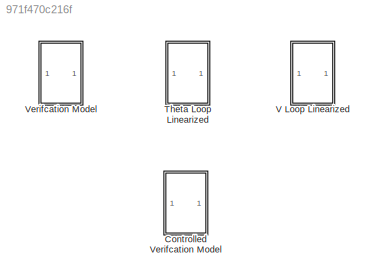
MODEL slx_971f470c216f
KIND model
CONFIG AbsTol = auto
CONFIG EnableMultiTasking = off
CONFIG FixedStep = auto
CONFIG MaxStep = auto
CONFIG MinStep = auto
CONFIG RelTol = 1e-3
CONFIG SampleTimeConstraint = Unconstrained
CONFIG Solver = VariableStepAuto
CONFIG SolverName = VariableStepAuto
CONFIG StartTime = 0.0
CONFIG StopTime = 250
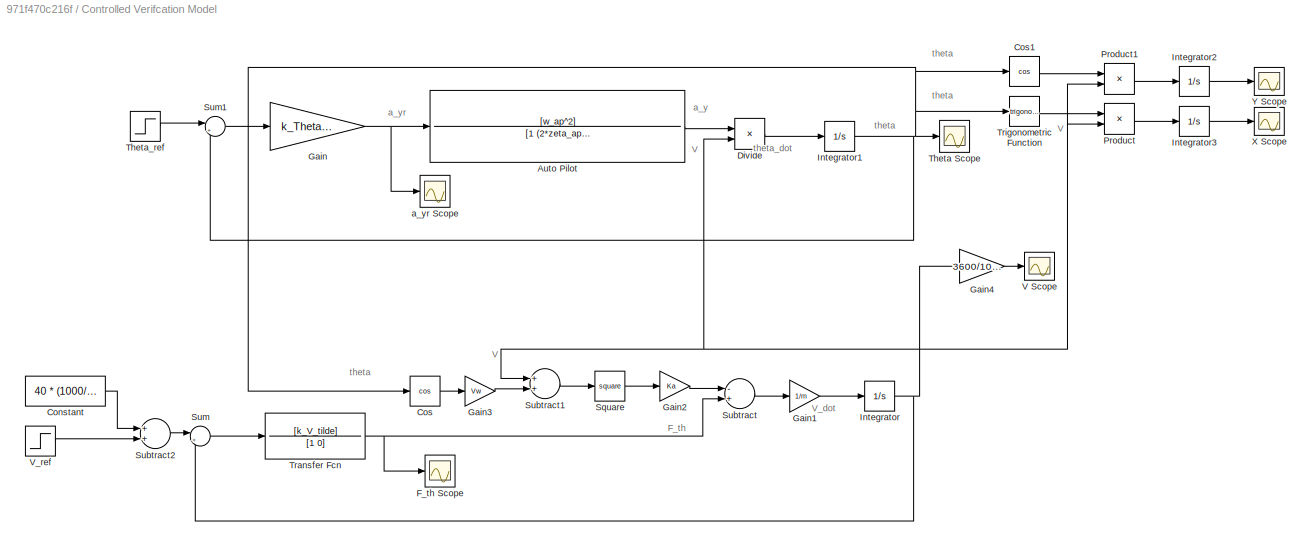
BLOCK [SubSystem] Controlled Verifcation Model 
  Ports = []
  RequestExecContextInheritance = off
BLOCK [TransferFcn] Controlled Verifcation Model /Auto Pilot
  ContinuousStateAttributes = 'auto_pilot'
  Denominator = [1 (2*zeta_ap*w_ap)  w_ap^2]
  Numerator = [w_ap^2]
BLOCK [Constant] Controlled Verifcation Model /Constant
  Value = 40 * (1000/3600)
BLOCK [Trigonometry] Controlled Verifcation Model /Cos
  Operator = cos
  Ports = [1, 1]
BLOCK [Trigonometry] Controlled Verifcation Model /Cos1
  Operator = cos
  Ports = [1, 1]
BLOCK [Product] Controlled Verifcation Model /Divide
  InputSameDT = off
  Inputs = */
  OutDataTypeStr = Inherit: Inherit via internal rule
  Ports = [2, 1]
  RndMeth = Floor
  SaturateOnIntegerOverflow = off
BLOCK [Scope] Controlled Verifcation Model /F_th Scope
  Floating = off
  NumInputPorts = 1
  Ports = [1]
  ScopeSpecificationString = Simulink.scopes.TimeScopeBlockCfg('CurrentConfiguration', extmgr.ConfigurationSet(extmgr.Configuration('Core','General UI',true),extmgr.Configuration('Core','Source UI',true),extmgr.Configuration('Sources','WiredSimulink',true,'DataLogging',true,'DataLoggingVariableName','F_th_controlled','DataLoggingSaveFormat','Array'),extmgr.Configuration('Visuals','Time Domain',true,'SerializedDisplays',{struc...<+1445ch>
BLOCK [Gain] Controlled Verifcation Model /Gain
  Gain = k_Theta*V_nom
  OutDataTypeStr = Inherit: Inherit via internal rule
  ParamDataTypeStr = Inherit: Inherit via internal rule
  SaturateOnIntegerOverflow = off
BLOCK [Gain] Controlled Verifcation Model /Gain1
  Gain = 1/m
  OutDataTypeStr = Inherit: Inherit via internal rule
  ParamDataTypeStr = Inherit: Inherit via internal rule
  SaturateOnIntegerOverflow = off
BLOCK [Gain] Controlled Verifcation Model /Gain2
  Gain = Ka
  OutDataTypeStr = Inherit: Inherit via internal rule
  ParamDataTypeStr = Inherit: Inherit via internal rule
  SaturateOnIntegerOverflow = off
BLOCK [Gain] Controlled Verifcation Model /Gain3
  Gain = Vw
  OutDataTypeStr = Inherit: Inherit via internal rule
  ParamDataTypeStr = Inherit: Inherit via internal rule
  SaturateOnIntegerOverflow = off
BLOCK [Gain] Controlled Verifcation Model /Gain4
  Gain = 3600/1000
  OutDataTypeStr = Inherit: Inherit via internal rule
  ParamDataTypeStr = Inherit: Inherit via internal rule
  SaturateOnIntegerOverflow = off
BLOCK [Integrator] Controlled Verifcation Model /Integrator
  InitialCondition = V0
  Ports = [1, 1]
BLOCK [Integrator] Controlled Verifcation Model /Integrator1
  Ports = [1, 1]
BLOCK [Integrator] Controlled Verifcation Model /Integrator2
  Ports = [1, 1]
BLOCK [Integrator] Controlled Verifcation Model /Integrator3
  Ports = [1, 1]
BLOCK [Product] Controlled Verifcation Model /Product
  InputSameDT = off
  OutDataTypeStr = Inherit: Inherit via internal rule
  Ports = [2, 1]
  RndMeth = Floor
  SaturateOnIntegerOverflow = off
BLOCK [Product] Controlled Verifcation Model /Product1
  InputSameDT = off
  OutDataTypeStr = Inherit: Inherit via internal rule
  Ports = [2, 1]
  RndMeth = Floor
  SaturateOnIntegerOverflow = off
BLOCK [Math] Controlled Verifcation Model /Square
  Operator = square
  Ports = [1, 1]
  SignedPower = off
BLOCK [Sum] Controlled Verifcation Model /Subtract
  InputSameDT = off
  Inputs = -+
  OutDataTypeStr = Inherit: Inherit via internal rule
  Ports = [2, 1]
  SaturateOnIntegerOverflow = off
BLOCK [Sum] Controlled Verifcation Model /Subtract1
  InputSameDT = off
  OutDataTypeStr = Inherit: Inherit via internal rule
  Ports = [2, 1]
  SaturateOnIntegerOverflow = off
BLOCK [Sum] Controlled Verifcation Model /Subtract2
  InputSameDT = off
  OutDataTypeStr = Inherit: Inherit via internal rule
  Ports = [2, 1]
  SaturateOnIntegerOverflow = off
BLOCK [Sum] Controlled Verifcation Model /Sum
  IconShape = round
  InputSameDT = off
  Inputs = |+-
  OutDataTypeStr = Inherit: Inherit via internal rule
  Ports = [2, 1]
  SaturateOnIntegerOverflow = off
BLOCK [Sum] Controlled Verifcation Model /Sum1
  IconShape = round
  InputSameDT = off
  Inputs = |+-
  OutDataTypeStr = Inherit: Inherit via internal rule
  Ports = [2, 1]
  SaturateOnIntegerOverflow = off
BLOCK [Scope] Controlled Verifcation Model /Theta Scope
  Floating = off
  NumInputPorts = 1
  Ports = [1]
  ScopeSpecificationString = Simulink.scopes.TimeScopeBlockCfg('CurrentConfiguration', extmgr.ConfigurationSet(extmgr.Configuration('Core','General UI',true),extmgr.Configuration('Core','Source UI',true),extmgr.Configuration('Sources','WiredSimulink',true,'DataLogging',true,'DataLoggingVariableName','Theta_controlled','DataLoggingSaveFormat','Array'),extmgr.Configuration('Visuals','Time Domain',true,'SerializedDisplays',{stru...<+1427ch>
BLOCK [Step] Controlled Verifcation Model /Theta_ref
  After = deg2rad(180)
  SampleTime = 0
  Time = 50
BLOCK [TransferFcn] Controlled Verifcation Model /Transfer Fcn
  Denominator = [1 0]
  Numerator = [k_V_tilde]
BLOCK [Trigonometry] Controlled Verifcation Model /Trigonometric Function
  Ports = [1, 1]
BLOCK [Scope] Controlled Verifcation Model /V Scope
  Floating = off
  NumInputPorts = 1
  Ports = [1]
  ScopeSpecificationString = Simulink.scopes.TimeScopeBlockCfg('CurrentConfiguration', extmgr.ConfigurationSet(extmgr.Configuration('Core','General UI',true),extmgr.Configuration('Core','Source UI',true),extmgr.Configuration('Sources','WiredSimulink',true,'DataLoggingVariableName','V_controlled','DataLogging',true,'DataLoggingSaveFormat','Array'),extmgr.Configuration('Visuals','Time Domain',true,'SerializedDisplays',{struct('...<+1423ch>
BLOCK [Step] Controlled Verifcation Model /V_ref
  After = 10 * (1000/3600)
  SampleTime = 0
  Time = 0
BLOCK [Scope] Controlled Verifcation Model /X Scope
  Floating = off
  NumInputPorts = 1
  Ports = [1]
  ScopeSpecificationString = Simulink.scopes.TimeScopeBlockCfg('CurrentConfiguration', extmgr.ConfigurationSet(extmgr.Configuration('Core','General UI',true),extmgr.Configuration('Core','Source UI',true),extmgr.Configuration('Sources','WiredSimulink',true,'DataLoggingVariableName','X_controlled','DataLogging',true,'DataLoggingSaveFormat','Array'),extmgr.Configuration('Visuals','Time Domain',true,'SerializedDisplays',{struct('...<+1437ch>
BLOCK [Scope] Controlled Verifcation Model /Y Scope 
  Floating = off
  NumInputPorts = 1
  Ports = [1]
  ScopeSpecificationString = Simulink.scopes.TimeScopeBlockCfg('CurrentConfiguration', extmgr.ConfigurationSet(extmgr.Configuration('Core','General UI',true),extmgr.Configuration('Core','Source UI',true),extmgr.Configuration('Sources','WiredSimulink',true,'DataLoggingVariableName','Y_controlled','DataLogging',true,'DataLoggingSaveFormat','Array'),extmgr.Configuration('Visuals','Time Domain',true,'SerializedDisplays',{struct('...<+1445ch>
BLOCK [Scope] Controlled Verifcation Model /a_yr Scope
  Floating = off
  NumInputPorts = 1
  Ports = [1]
  ScopeSpecificationString = Simulink.scopes.TimeScopeBlockCfg('CurrentConfiguration', extmgr.ConfigurationSet(extmgr.Configuration('Core','General UI',true),extmgr.Configuration('Core','Source UI',true),extmgr.Configuration('Sources','WiredSimulink',true,'DataLogging',true,'DataLoggingVariableName','a_yr_controlled','DataLoggingSaveFormat','Array'),extmgr.Configuration('Visuals','Time Domain',true,'SerializedDisplays',{struc...<+1415ch>
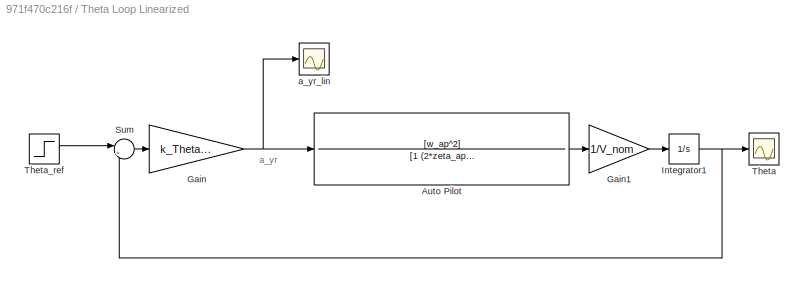
BLOCK [SubSystem] Theta Loop Linearized
  Commented = on
  Ports = []
  RequestExecContextInheritance = off
BLOCK [TransferFcn] Theta Loop Linearized/Auto Pilot
  ContinuousStateAttributes = 'auto_pilot'
  Denominator = [1 (2*zeta_ap*w_ap)  w_ap^2]
  Numerator = [w_ap^2]
BLOCK [Gain] Theta Loop Linearized/Gain
  Gain = k_Theta*V_nom
  OutDataTypeStr = Inherit: Inherit via internal rule
  ParamDataTypeStr = Inherit: Inherit via internal rule
  SaturateOnIntegerOverflow = off
BLOCK [Gain] Theta Loop Linearized/Gain1
  Gain = 1/V_nom
  OutDataTypeStr = Inherit: Inherit via internal rule
  ParamDataTypeStr = Inherit: Inherit via internal rule
  SaturateOnIntegerOverflow = off
BLOCK [Integrator] Theta Loop Linearized/Integrator1
  Ports = [1, 1]
BLOCK [Sum] Theta Loop Linearized/Sum
  IconShape = round
  InputSameDT = off
  Inputs = |+-
  OutDataTypeStr = Inherit: Inherit via internal rule
  Ports = [2, 1]
  SaturateOnIntegerOverflow = off
BLOCK [Scope] Theta Loop Linearized/Theta
  Floating = off
  NumInputPorts = 1
  Ports = [1]
  ScopeSpecificationString = Simulink.scopes.TimeScopeBlockCfg('CurrentConfiguration', extmgr.ConfigurationSet(extmgr.Configuration('Core','General UI',true),extmgr.Configuration('Core','Source UI',true),extmgr.Configuration('Sources','WiredSimulink',true,'DataLoggingVariableName','Theta_lin','DataLogging',true,'DataLoggingSaveFormat','Array'),extmgr.Configuration('Visuals','Time Domain',true,'SerializedDisplays',{struct('Min...<+1420ch>
BLOCK [Step] Theta Loop Linearized/Theta_ref
  After = deg2rad(180)
  SampleTime = 0
  Time = 50
BLOCK [Scope] Theta Loop Linearized/a_yr_lin
  Floating = off
  NumInputPorts = 1
  Ports = [1]
  ScopeSpecificationString = Simulink.scopes.TimeScopeBlockCfg('CurrentConfiguration', extmgr.ConfigurationSet(extmgr.Configuration('Core','General UI',true),extmgr.Configuration('Core','Source UI',true),extmgr.Configuration('Sources','WiredSimulink',true,'DataLoggingVariableName','a_yr_lin','DataLogging',true,'DataLoggingSaveFormat','Array'),extmgr.Configuration('Visuals','Time Domain',true,'SerializedDisplays',{struct('MinY...<+1408ch>
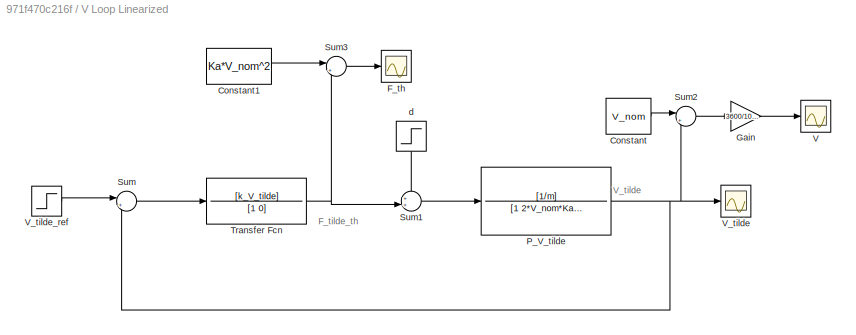
BLOCK [SubSystem] V Loop Linearized
  Commented = on
  Ports = []
  RequestExecContextInheritance = off
BLOCK [Constant] V Loop Linearized/Constant
  Value = V_nom
BLOCK [Constant] V Loop Linearized/Constant1
  Value = Ka*V_nom^2
BLOCK [Scope] V Loop Linearized/F_th
  Floating = off
  NumInputPorts = 1
  Ports = [1]
  ScopeSpecificationString = Simulink.scopes.TimeScopeBlockCfg('CurrentConfiguration', extmgr.ConfigurationSet(extmgr.Configuration('Core','General UI',true),extmgr.Configuration('Core','Source UI',true),extmgr.Configuration('Sources','WiredSimulink',true,'DataLoggingVariableName','F_th_lin','DataLogging',true,'DataLoggingSaveFormat','Array'),extmgr.Configuration('Visuals','Time Domain',true,'SerializedDisplays',{struct('MinY...<+1422ch>
BLOCK [Gain] V Loop Linearized/Gain
  Gain = 3600/1000
  OutDataTypeStr = Inherit: Inherit via internal rule
  ParamDataTypeStr = Inherit: Inherit via internal rule
  SaturateOnIntegerOverflow = off
BLOCK [TransferFcn] V Loop Linearized/P_V_tilde
  ContinuousStateAttributes = 'auto_pilot'
  Denominator = [1 2*V_nom*Ka/m]
  Numerator = [1/m]
BLOCK [Sum] V Loop Linearized/Sum
  IconShape = round
  InputSameDT = off
  Inputs = |+-
  OutDataTypeStr = Inherit: Inherit via internal rule
  Ports = [2, 1]
  SaturateOnIntegerOverflow = off
BLOCK [Sum] V Loop Linearized/Sum1
  IconShape = round
  InputSameDT = off
  Inputs = ++|
  OutDataTypeStr = Inherit: Inherit via internal rule
  Ports = [2, 1]
  SaturateOnIntegerOverflow = off
BLOCK [Sum] V Loop Linearized/Sum2
  IconShape = round
  InputSameDT = off
  Inputs = |++
  OutDataTypeStr = Inherit: Inherit via internal rule
  Ports = [2, 1]
  SaturateOnIntegerOverflow = off
BLOCK [Sum] V Loop Linearized/Sum3
  IconShape = round
  InputSameDT = off
  Inputs = |++
  OutDataTypeStr = Inherit: Inherit via internal rule
  Ports = [2, 1]
  SaturateOnIntegerOverflow = off
BLOCK [TransferFcn] V Loop Linearized/Transfer Fcn
  Denominator = [1 0]
  Numerator = [k_V_tilde]
BLOCK [Scope] V Loop Linearized/V
  Floating = off
  NumInputPorts = 1
  Ports = [1]
  ScopeSpecificationString = Simulink.scopes.TimeScopeBlockCfg('CurrentConfiguration', extmgr.ConfigurationSet(extmgr.Configuration('Core','General UI',true),extmgr.Configuration('Core','Source UI',true),extmgr.Configuration('Sources','WiredSimulink',true,'DataLoggingVariableName','V_lin','DataLogging',true,'DataLoggingSaveFormat','Array'),extmgr.Configuration('Visuals','Time Domain',true,'SerializedDisplays',{struct('MinYLim...<+1415ch>
BLOCK [Scope] V Loop Linearized/V_tilde
  Floating = off
  NumInputPorts = 1
  Ports = [1]
  ScopeSpecificationString = Simulink.scopes.TimeScopeBlockCfg('CurrentConfiguration', extmgr.ConfigurationSet(extmgr.Configuration('Core','General UI',true),extmgr.Configuration('Core','Source UI',true),extmgr.Configuration('Sources','WiredSimulink',true,'DataLoggingVariableName','V_tilde_lin','DataLogging',true,'DataLoggingSaveFormat','Array'),extmgr.Configuration('Visuals','Time Domain',true,'SerializedDisplays',{struct('M...<+1418ch>
BLOCK [Step] V Loop Linearized/V_tilde_ref
  After = 10 * (1000/3600)
  SampleTime = 0
  Time = 0
BLOCK [Step] V Loop Linearized/d
  After = -1
  SampleTime = 0
  Time = 50
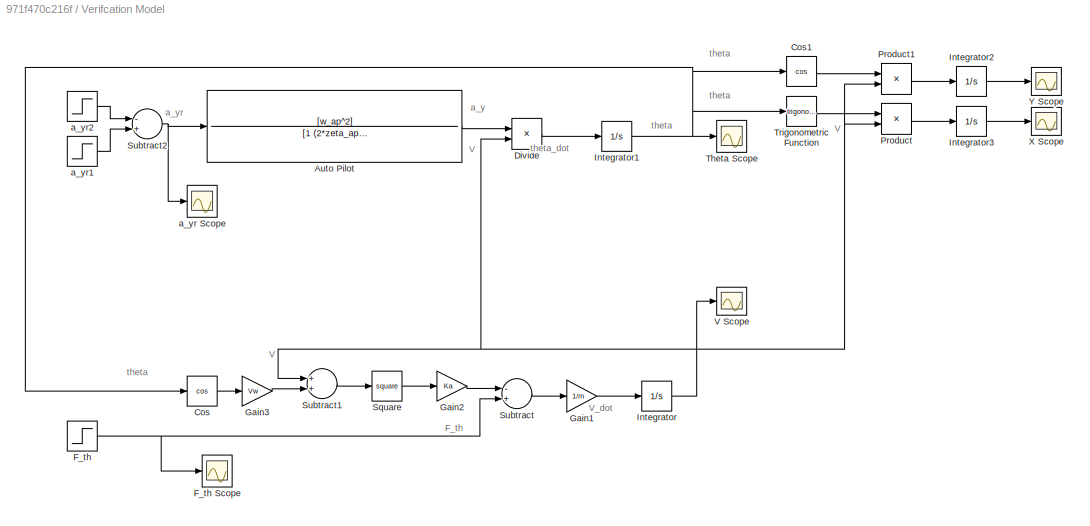
BLOCK [SubSystem] Verifcation Model 
  Commented = on
  Ports = []
  RequestExecContextInheritance = off
BLOCK [TransferFcn] Verifcation Model /Auto Pilot
  ContinuousStateAttributes = 'auto_pilot'
  Denominator = [1 (2*zeta_ap*w_ap)  w_ap^2]
  Numerator = [w_ap^2]
BLOCK [Trigonometry] Verifcation Model /Cos
  Operator = cos
  Ports = [1, 1]
BLOCK [Trigonometry] Verifcation Model /Cos1
  Operator = cos
  Ports = [1, 1]
BLOCK [Product] Verifcation Model /Divide
  InputSameDT = off
  Inputs = */
  OutDataTypeStr = Inherit: Inherit via internal rule
  Ports = [2, 1]
  RndMeth = Floor
  SaturateOnIntegerOverflow = off
BLOCK [Step] Verifcation Model /F_th
  After = 1500
  SampleTime = 0
  Time = 0
BLOCK [Scope] Verifcation Model /F_th Scope
  Floating = off
  NumInputPorts = 1
  Ports = [1]
  ScopeSpecificationString = Simulink.scopes.TimeScopeBlockCfg('CurrentConfiguration', extmgr.ConfigurationSet(extmgr.Configuration('Core','General UI',true),extmgr.Configuration('Core','Source UI',true),extmgr.Configuration('Sources','WiredSimulink',true,'DataLogging',true,'DataLoggingVariableName','F_th','DataLoggingSaveFormat','Array'),extmgr.Configuration('Visuals','Time Domain',true,'SerializedDisplays',{struct('MinYLimR...<+1426ch>
BLOCK [Gain] Verifcation Model /Gain1
  Gain = 1/m
  OutDataTypeStr = Inherit: Inherit via internal rule
  ParamDataTypeStr = Inherit: Inherit via internal rule
  SaturateOnIntegerOverflow = off
BLOCK [Gain] Verifcation Model /Gain2
  Gain = Ka
  OutDataTypeStr = Inherit: Inherit via internal rule
  ParamDataTypeStr = Inherit: Inherit via internal rule
  SaturateOnIntegerOverflow = off
BLOCK [Gain] Verifcation Model /Gain3
  Gain = Vw
  OutDataTypeStr = Inherit: Inherit via internal rule
  ParamDataTypeStr = Inherit: Inherit via internal rule
  SaturateOnIntegerOverflow = off
BLOCK [Integrator] Verifcation Model /Integrator
  InitialCondition = V0
  Ports = [1, 1]
BLOCK [Integrator] Verifcation Model /Integrator1
  Ports = [1, 1]
BLOCK [Integrator] Verifcation Model /Integrator2
  Ports = [1, 1]
BLOCK [Integrator] Verifcation Model /Integrator3
  Ports = [1, 1]
BLOCK [Product] Verifcation Model /Product
  InputSameDT = off
  OutDataTypeStr = Inherit: Inherit via internal rule
  Ports = [2, 1]
  RndMeth = Floor
  SaturateOnIntegerOverflow = off
BLOCK [Product] Verifcation Model /Product1
  InputSameDT = off
  OutDataTypeStr = Inherit: Inherit via internal rule
  Ports = [2, 1]
  RndMeth = Floor
  SaturateOnIntegerOverflow = off
BLOCK [Math] Verifcation Model /Square
  Operator = square
  Ports = [1, 1]
  SignedPower = off
BLOCK [Sum] Verifcation Model /Subtract
  InputSameDT = off
  Inputs = -+
  OutDataTypeStr = Inherit: Inherit via internal rule
  Ports = [2, 1]
  SaturateOnIntegerOverflow = off
BLOCK [Sum] Verifcation Model /Subtract1
  InputSameDT = off
  OutDataTypeStr = Inherit: Inherit via internal rule
  Ports = [2, 1]
  SaturateOnIntegerOverflow = off
BLOCK [Sum] Verifcation Model /Subtract2
  InputSameDT = off
  Inputs = -+
  OutDataTypeStr = Inherit: Inherit via internal rule
  Ports = [2, 1]
  SaturateOnIntegerOverflow = off
BLOCK [Scope] Verifcation Model /Theta Scope
  Floating = off
  NumInputPorts = 1
  Ports = [1]
  ScopeSpecificationString = Simulink.scopes.TimeScopeBlockCfg('CurrentConfiguration', extmgr.ConfigurationSet(extmgr.Configuration('Core','General UI',true),extmgr.Configuration('Core','Source UI',true),extmgr.Configuration('Sources','WiredSimulink',true,'DataLogging',true,'DataLoggingVariableName','Theta','DataLoggingSaveFormat','Array'),extmgr.Configuration('Visuals','Time Domain',true,'SerializedDisplays',{struct('MinYLim...<+1416ch>
BLOCK [Trigonometry] Verifcation Model /Trigonometric Function
  Ports = [1, 1]
BLOCK [Scope] Verifcation Model /V Scope
  Floating = off
  NumInputPorts = 1
  Ports = [1]
  ScopeSpecificationString = Simulink.scopes.TimeScopeBlockCfg('CurrentConfiguration', extmgr.ConfigurationSet(extmgr.Configuration('Core','General UI',true),extmgr.Configuration('Core','Source UI',true),extmgr.Configuration('Sources','WiredSimulink',true,'DataLoggingVariableName','V','DataLogging',true,'DataLoggingSaveFormat','Array'),extmgr.Configuration('Visuals','Time Domain',true,'SerializedDisplays',{struct('MinYLimReal...<+1413ch>
BLOCK [Scope] Verifcation Model /X Scope
  Floating = off
  NumInputPorts = 1
  Ports = [1]
  ScopeSpecificationString = Simulink.scopes.TimeScopeBlockCfg('CurrentConfiguration', extmgr.ConfigurationSet(extmgr.Configuration('Core','General UI',true),extmgr.Configuration('Core','Source UI',true),extmgr.Configuration('Sources','WiredSimulink',true,'DataLoggingVariableName','X','DataLogging',true,'DataLoggingSaveFormat','Array'),extmgr.Configuration('Visuals','Time Domain',true,'SerializedDisplays',{struct('MinYLimReal...<+1412ch>
BLOCK [Scope] Verifcation Model /Y Scope 
  Floating = off
  NumInputPorts = 1
  Ports = [1]
  ScopeSpecificationString = Simulink.scopes.TimeScopeBlockCfg('CurrentConfiguration', extmgr.ConfigurationSet(extmgr.Configuration('Core','General UI',true),extmgr.Configuration('Core','Source UI',true),extmgr.Configuration('Sources','WiredSimulink',true,'DataLoggingVariableName','Y','DataLogging',true,'DataLoggingSaveFormat','Array'),extmgr.Configuration('Visuals','Time Domain',true,'SerializedDisplays',{struct('MinYLimReal...<+1422ch>
BLOCK [Scope] Verifcation Model /a_yr Scope
  Floating = off
  NumInputPorts = 1
  Ports = [1]
  ScopeSpecificationString = Simulink.scopes.TimeScopeBlockCfg('CurrentConfiguration', extmgr.ConfigurationSet(extmgr.Configuration('Core','General UI',true),extmgr.Configuration('Core','Source UI',true),extmgr.Configuration('Sources','WiredSimulink',true,'DataLogging',true,'DataLoggingVariableName','a_yr','DataLoggingSaveFormat','Array'),extmgr.Configuration('Visuals','Time Domain',true,'SerializedDisplays',{struct('MinYLimR...<+1401ch>
BLOCK [Step] Verifcation Model /a_yr1
  After = a_yr1_amp
  SampleTime = 0
  Time = a_yr1_time
BLOCK [Step] Verifcation Model /a_yr2
  After = a_yr2_amp
  SampleTime = 0
  Time = a_yr2_time
ANNOTATION Controlled Verifcation Model : F_th
ANNOTATION Controlled Verifcation Model : V
ANNOTATION Controlled Verifcation Model : V_dot
ANNOTATION Controlled Verifcation Model : a_y
ANNOTATION Controlled Verifcation Model : a_yr
ANNOTATION Controlled Verifcation Model : theta
ANNOTATION Controlled Verifcation Model : theta_dot
ANNOTATION Theta Loop Linearized: a_yr
ANNOTATION V Loop Linearized: F_tilde_th
ANNOTATION V Loop Linearized: V_tilde
ANNOTATION Verifcation Model : F_th
ANNOTATION Verifcation Model : V
ANNOTATION Verifcation Model : V_dot
ANNOTATION Verifcation Model : a_y
ANNOTATION Verifcation Model : a_yr
ANNOTATION Verifcation Model : theta
ANNOTATION Verifcation Model : theta_dot
LINE Controlled Verifcation Model /Auto Pilot:1 -> Controlled Verifcation Model /Divide:1
LINE Controlled Verifcation Model /Constant:1 -> Controlled Verifcation Model /Subtract2:1
LINE Controlled Verifcation Model /Cos1:1 -> Controlled Verifcation Model /Product1:1
LINE Controlled Verifcation Model /Cos:1 -> Controlled Verifcation Model /Gain3:1
LINE Controlled Verifcation Model /Divide:1 -> Controlled Verifcation Model /Integrator1:1
LINE Controlled Verifcation Model /Gain1:1 -> Controlled Verifcation Model /Integrator:1
LINE Controlled Verifcation Model /Gain2:1 -> Controlled Verifcation Model /Subtract:1
LINE Controlled Verifcation Model /Gain3:1 -> Controlled Verifcation Model /Subtract1:2
LINE Controlled Verifcation Model /Gain4:1 -> Controlled Verifcation Model /V Scope:1
NET Controlled Verifcation Model /Gain:1 -> Controlled Verifcation Model /Auto Pilot:1, Controlled Verifcation Model /a_yr Scope:1
NET Controlled Verifcation Model /Integrator1:1 -> Controlled Verifcation Model /Cos1:1, Controlled Verifcation Model /Cos:1, Controlled Verifcation Model /Sum1:2, Controlled Verifcation Model /Theta Scope:1, Controlled Verifcation Model /Trigonometric Function:1
LINE Controlled Verifcation Model /Integrator2:1 -> Controlled Verifcation Model /Y Scope :1
LINE Controlled Verifcation Model /Integrator3:1 -> Controlled Verifcation Model /X Scope:1
NET Controlled Verifcation Model /Integrator:1 -> Controlled Verifcation Model /Divide:2, Controlled Verifcation Model /Gain4:1, Controlled Verifcation Model /Product1:2, Controlled Verifcation Model /Product:2, Controlled Verifcation Model /Subtract1:1, Controlled Verifcation Model /Sum:2
LINE Controlled Verifcation Model /Product1:1 -> Controlled Verifcation Model /Integrator2:1
LINE Controlled Verifcation Model /Product:1 -> Controlled Verifcation Model /Integrator3:1
LINE Controlled Verifcation Model /Square:1 -> Controlled Verifcation Model /Gain2:1
LINE Controlled Verifcation Model /Subtract1:1 -> Controlled Verifcation Model /Square:1
LINE Controlled Verifcation Model /Subtract2:1 -> Controlled Verifcation Model /Sum:1
LINE Controlled Verifcation Model /Subtract:1 -> Controlled Verifcation Model /Gain1:1
LINE Controlled Verifcation Model /Sum1:1 -> Controlled Verifcation Model /Gain:1
LINE Controlled Verifcation Model /Sum:1 -> Controlled Verifcation Model /Transfer Fcn:1
LINE Controlled Verifcation Model /Theta_ref:1 -> Controlled Verifcation Model /Sum1:1
NET Controlled Verifcation Model /Transfer Fcn:1 -> Controlled Verifcation Model /F_th Scope:1, Controlled Verifcation Model /Subtract:2
LINE Controlled Verifcation Model /Trigonometric Function:1 -> Controlled Verifcation Model /Product:1
LINE Controlled Verifcation Model /V_ref:1 -> Controlled Verifcation Model /Subtract2:2
LINE Theta Loop Linearized/Auto Pilot:1 -> Theta Loop Linearized/Gain1:1
LINE Theta Loop Linearized/Gain1:1 -> Theta Loop Linearized/Integrator1:1
NET Theta Loop Linearized/Gain:1 -> Theta Loop Linearized/Auto Pilot:1, Theta Loop Linearized/a_yr_lin:1
NET Theta Loop Linearized/Integrator1:1 -> Theta Loop Linearized/Sum:2, Theta Loop Linearized/Theta:1
LINE Theta Loop Linearized/Sum:1 -> Theta Loop Linearized/Gain:1
LINE Theta Loop Linearized/Theta_ref:1 -> Theta Loop Linearized/Sum:1
LINE V Loop Linearized/Constant1:1 -> V Loop Linearized/Sum3:1
LINE V Loop Linearized/Constant:1 -> V Loop Linearized/Sum2:1
LINE V Loop Linearized/Gain:1 -> V Loop Linearized/V:1
NET V Loop Linearized/P_V_tilde:1 -> V Loop Linearized/Sum2:2, V Loop Linearized/Sum:2, V Loop Linearized/V_tilde:1
LINE V Loop Linearized/Sum1:1 -> V Loop Linearized/P_V_tilde:1
LINE V Loop Linearized/Sum2:1 -> V Loop Linearized/Gain:1
LINE V Loop Linearized/Sum3:1 -> V Loop Linearized/F_th:1
LINE V Loop Linearized/Sum:1 -> V Loop Linearized/Transfer Fcn:1
NET V Loop Linearized/Transfer Fcn:1 -> V Loop Linearized/Sum1:2, V Loop Linearized/Sum3:2
LINE V Loop Linearized/V_tilde_ref:1 -> V Loop Linearized/Sum:1
LINE V Loop Linearized/d:1 -> V Loop Linearized/Sum1:1
LINE Verifcation Model /Auto Pilot:1 -> Verifcation Model /Divide:1
LINE Verifcation Model /Cos1:1 -> Verifcation Model /Product1:1
LINE Verifcation Model /Cos:1 -> Verifcation Model /Gain3:1
LINE Verifcation Model /Divide:1 -> Verifcation Model /Integrator1:1
NET Verifcation Model /F_th:1 -> Verifcation Model /F_th Scope:1, Verifcation Model /Subtract:2
LINE Verifcation Model /Gain1:1 -> Verifcation Model /Integrator:1
LINE Verifcation Model /Gain2:1 -> Verifcation Model /Subtract:1
LINE Verifcation Model /Gain3:1 -> Verifcation Model /Subtract1:2
NET Verifcation Model /Integrator1:1 -> Verifcation Model /Cos1:1, Verifcation Model /Cos:1, Verifcation Model /Theta Scope:1, Verifcation Model /Trigonometric Function:1
LINE Verifcation Model /Integrator2:1 -> Verifcation Model /Y Scope :1
LINE Verifcation Model /Integrator3:1 -> Verifcation Model /X Scope:1
NET Verifcation Model /Integrator:1 -> Verifcation Model /Divide:2, Verifcation Model /Product1:2, Verifcation Model /Product:2, Verifcation Model /Subtract1:1, Verifcation Model /V Scope:1
LINE Verifcation Model /Product1:1 -> Verifcation Model /Integrator2:1
LINE Verifcation Model /Product:1 -> Verifcation Model /Integrator3:1
LINE Verifcation Model /Square:1 -> Verifcation Model /Gain2:1
LINE Verifcation Model /Subtract1:1 -> Verifcation Model /Square:1
NET Verifcation Model /Subtract2:1 -> Verifcation Model /Auto Pilot:1, Verifcation Model /a_yr Scope:1
LINE Verifcation Model /Subtract:1 -> Verifcation Model /Gain1:1
LINE Verifcation Model /Trigonometric Function:1 -> Verifcation Model /Product:1
LINE Verifcation Model /a_yr1:1 -> Verifcation Model /Subtract2:2
LINE Verifcation Model /a_yr2:1 -> Verifcation Model /Subtract2:1
note: NET lines group one-source signal fan-out (src -> all destinations, sorted); 1:1 wires keep LINE
